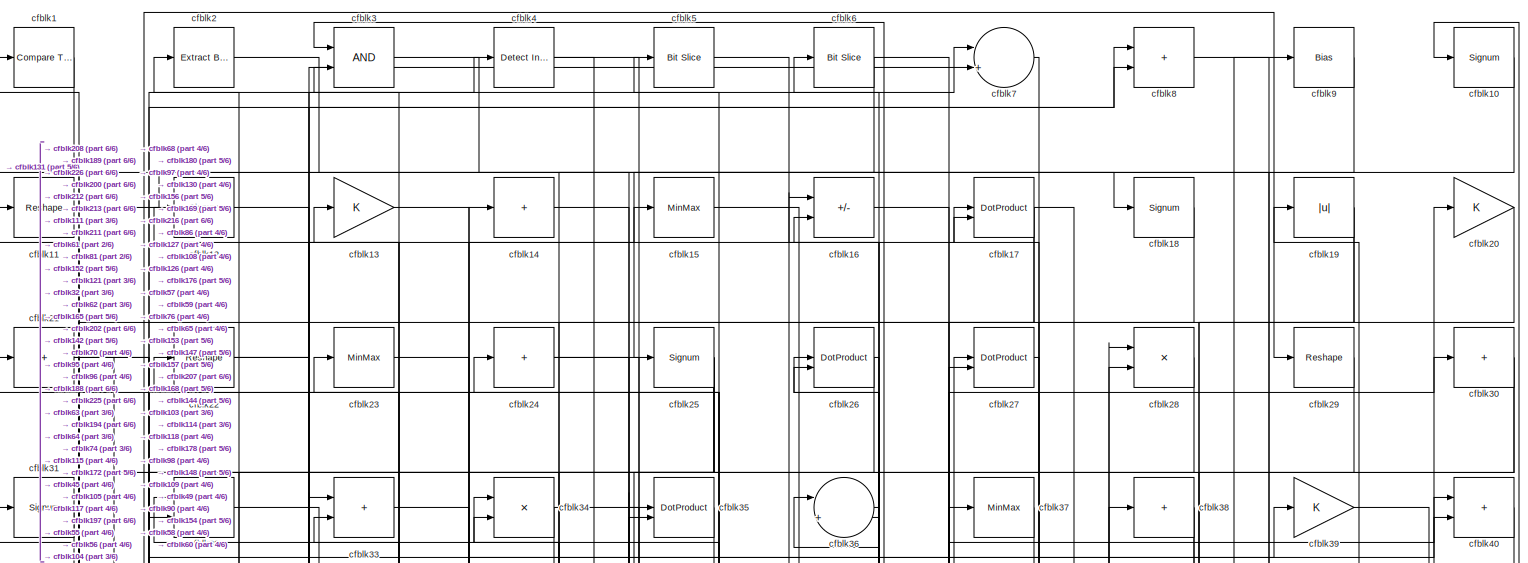
[diagram: root canvas - part 1/6, full width, top band]
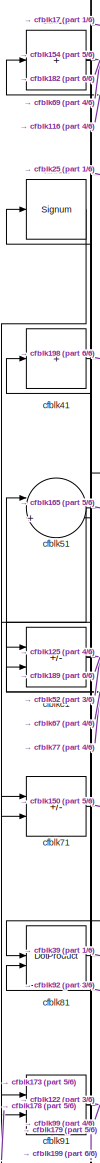
[diagram: root canvas - part 2/6, top left region]
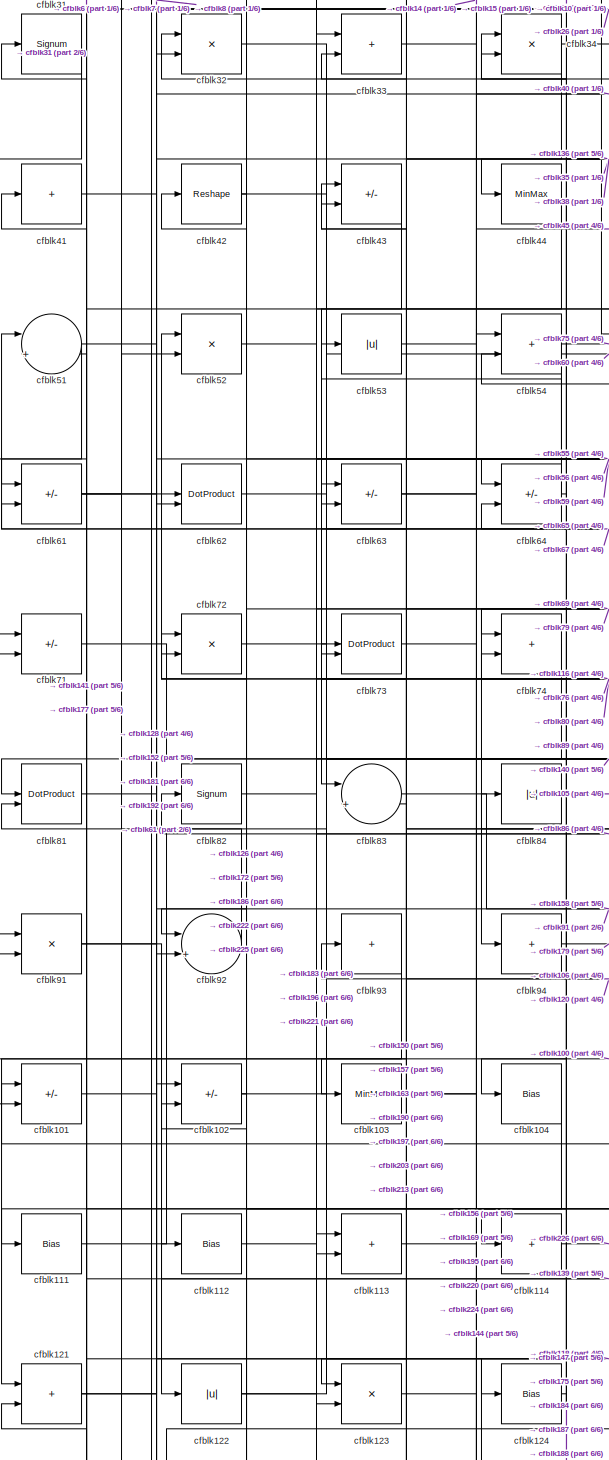
[diagram: root canvas - part 3/6, middle left region]
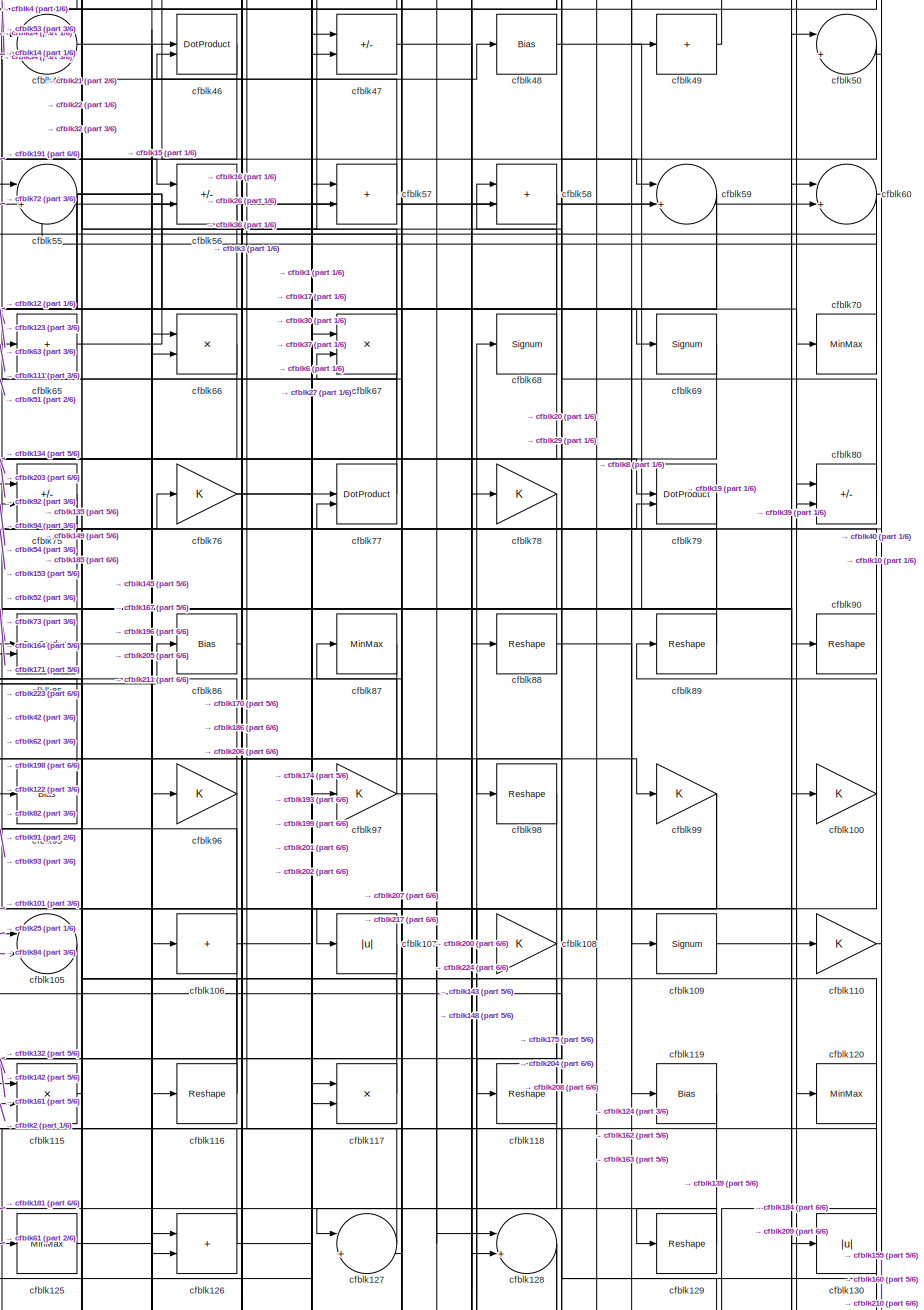
[diagram: root canvas - part 4/6, middle right region]
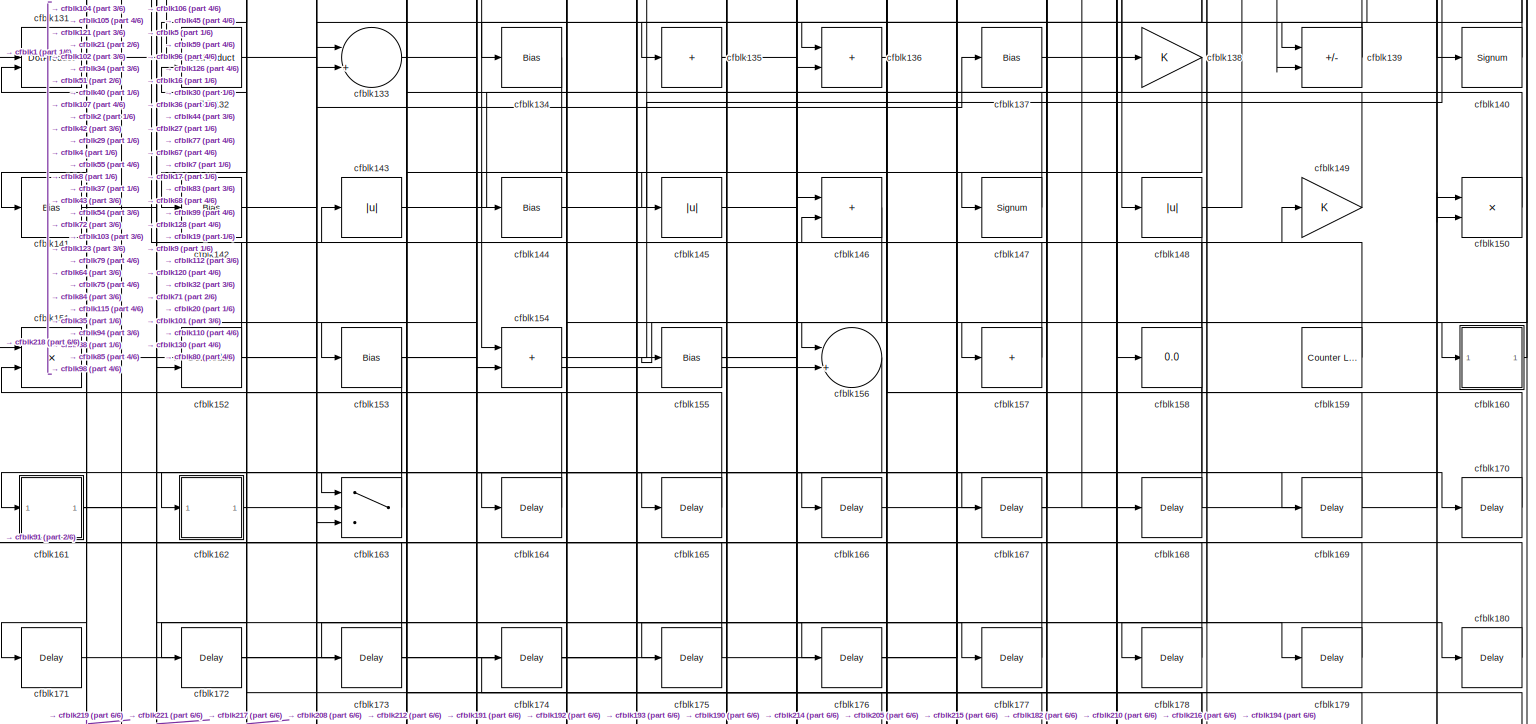
[diagram: root canvas - part 5/6, full width, bottom band]
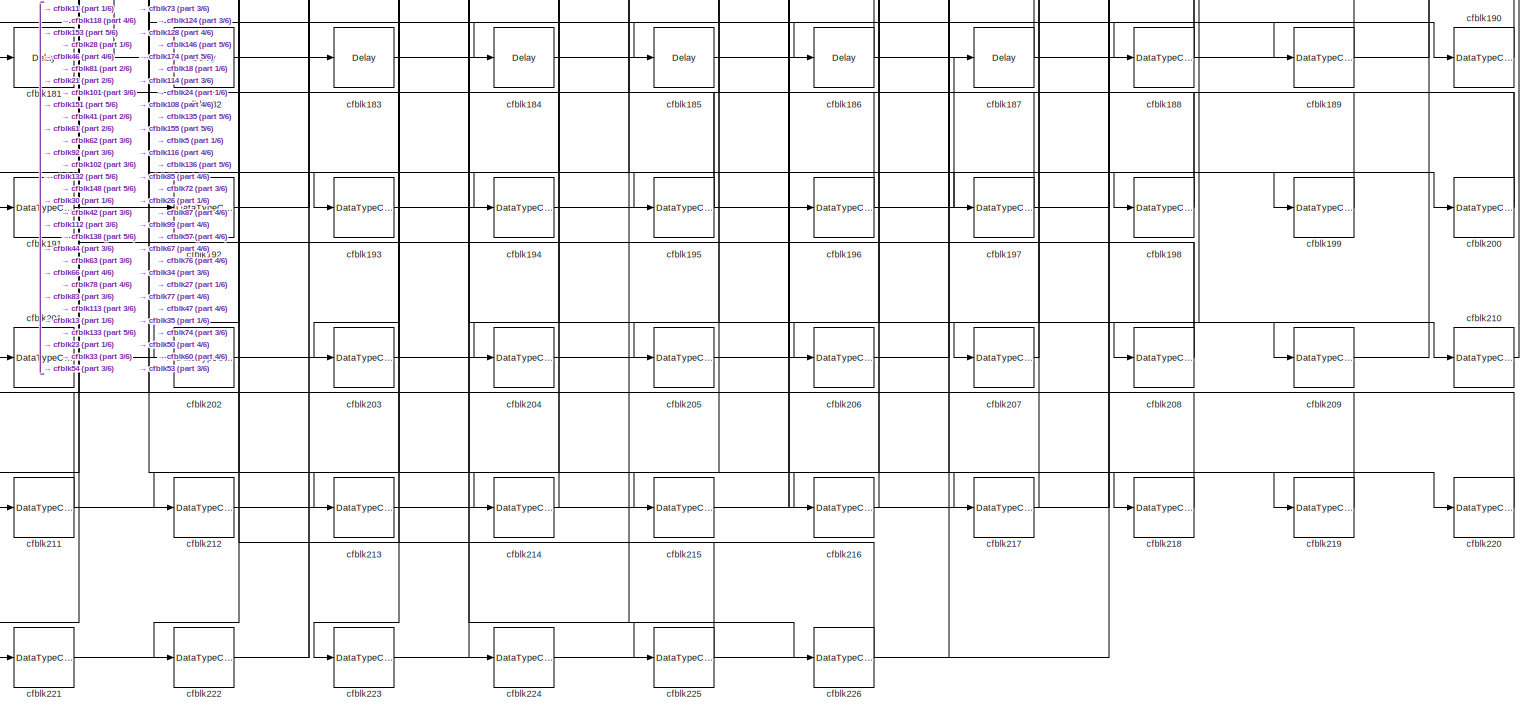
[diagram: root canvas - part 6/6, full width, bottom band]
MODEL slx_b7831458a49b
KIND model
CONFIG AbsTol = auto
CONFIG EnableMultiTasking = off
CONFIG FixedStep = auto
CONFIG MaxStep = auto
CONFIG MinStep = auto
CONFIG RelTol = 1e-3
CONFIG SampleTimeConstraint = Unconstrained
CONFIG SolverName = VariableStepAuto
CONFIG StartTime = 0.0
CONFIG StopTime = 10.0
BLOCK [Reference] cfblk1  REF=hdlsllib/Logic and Bit
Operations/Compare
To Constant
  SourceBlock = hdlsllib/Logic and Bit\nOperations/Compare\nTo Constant
  SourceType = Compare To Constant
BLOCK [Signum] cfblk10
BLOCK [Gain] cfblk100
BLOCK [Sum] cfblk101
  IconShape = rectangular
  Inputs = +-
BLOCK [Sum] cfblk102
  IconShape = rectangular
  Inputs = +-
BLOCK [MinMax] cfblk103
BLOCK [Bias] cfblk104
  Bias = 0.0
  SaturateOnIntegerOverflow = off
BLOCK [Sum] cfblk105
  Inputs = |++
BLOCK [Sum] cfblk106
  IconShape = rectangular
  Inputs = +
BLOCK [Abs] cfblk107
  SaturateOnIntegerOverflow = off
BLOCK [Gain] cfblk108
BLOCK [Signum] cfblk109
BLOCK [Reshape] cfblk11
BLOCK [Gain] cfblk110
BLOCK [Bias] cfblk111
  Bias = 0.0
  SaturateOnIntegerOverflow = off
BLOCK [Bias] cfblk112
  Bias = 0.0
  SaturateOnIntegerOverflow = off
BLOCK [Sum] cfblk113
  IconShape = rectangular
BLOCK [Sum] cfblk114
  IconShape = rectangular
  Inputs = +
BLOCK [Product] cfblk115
  Inputs = */
  RndMeth = Zero
  SaturateOnIntegerOverflow = on
BLOCK [Reshape] cfblk116
BLOCK [Product] cfblk117
  Inputs = */
  RndMeth = Zero
  SaturateOnIntegerOverflow = on
BLOCK [Reshape] cfblk118
BLOCK [Bias] cfblk119
  Bias = 0.0
  SaturateOnIntegerOverflow = off
BLOCK [Signum] cfblk12
BLOCK [MinMax] cfblk120
BLOCK [Sum] cfblk121
  IconShape = rectangular
BLOCK [Abs] cfblk122
  SaturateOnIntegerOverflow = off
BLOCK [Product] cfblk123
  Inputs = */
  RndMeth = Zero
  SaturateOnIntegerOverflow = on
BLOCK [Bias] cfblk124
  Bias = 0.0
  SaturateOnIntegerOverflow = off
BLOCK [MinMax] cfblk125
BLOCK [Sum] cfblk126
  IconShape = rectangular
BLOCK [Sum] cfblk127
  Inputs = |++
BLOCK [Sum] cfblk128
  Inputs = |++
BLOCK [Reshape] cfblk129
BLOCK [Gain] cfblk13
BLOCK [Abs] cfblk130
  SaturateOnIntegerOverflow = off
BLOCK [DotProduct] cfblk131
  OutDataTypeStr = Inherit: Inherit via internal rule
BLOCK [DotProduct] cfblk132
  OutDataTypeStr = Inherit: Inherit via internal rule
BLOCK [Sum] cfblk133
  Inputs = |++
BLOCK [Bias] cfblk134
  Bias = 0.0
  SaturateOnIntegerOverflow = off
BLOCK [Sum] cfblk135
  IconShape = rectangular
  Inputs = +
BLOCK [Sum] cfblk136
  IconShape = rectangular
BLOCK [Bias] cfblk137
  Bias = 0.0
  SaturateOnIntegerOverflow = off
BLOCK [Gain] cfblk138
BLOCK [Sum] cfblk139
  IconShape = rectangular
  Inputs = +-
BLOCK [Sum] cfblk14
  IconShape = rectangular
  Inputs = +
BLOCK [Signum] cfblk140
BLOCK [Bias] cfblk141
  Bias = 0.0
  SaturateOnIntegerOverflow = off
BLOCK [Bias] cfblk142
  Bias = 0.0
  SaturateOnIntegerOverflow = off
BLOCK [Abs] cfblk143
  SaturateOnIntegerOverflow = off
BLOCK [Bias] cfblk144
  Bias = 0.0
  SaturateOnIntegerOverflow = off
BLOCK [Abs] cfblk145
  SaturateOnIntegerOverflow = off
BLOCK [Sum] cfblk146
  IconShape = rectangular
BLOCK [Signum] cfblk147
BLOCK [Abs] cfblk148
  SaturateOnIntegerOverflow = off
BLOCK [Gain] cfblk149
BLOCK [MinMax] cfblk15
BLOCK [Product] cfblk150
  Inputs = */
  RndMeth = Zero
  SaturateOnIntegerOverflow = on
BLOCK [Product] cfblk151
  Inputs = */
  RndMeth = Zero
  SaturateOnIntegerOverflow = on
BLOCK [DotProduct] cfblk152
  OutDataTypeStr = Inherit: Inherit via internal rule
BLOCK [Bias] cfblk153
  Bias = 0.0
  SaturateOnIntegerOverflow = off
BLOCK [Sum] cfblk154
  IconShape = rectangular
BLOCK [Bias] cfblk155
  Bias = 0.0
  SaturateOnIntegerOverflow = off
BLOCK [Sum] cfblk156
  Inputs = |++
BLOCK [Sum] cfblk157
  IconShape = rectangular
  Inputs = +
BLOCK [Display] cfblk158
  Decimation = 1
BLOCK [Reference] cfblk159  REF=hdlsllib/Sources/Counter
Limited
  SourceBlock = hdlsllib/Sources/Counter\nLimited
  SourceType = Counter Limited
BLOCK [Sum] cfblk16
  IconShape = rectangular
  Inputs = +-
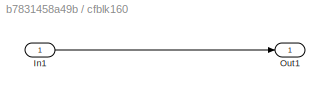
BLOCK [SubSystem] cfblk160
  LibrarySourceBlock = hdlsllib/Ports &\nSubsystems/Subsystem
BLOCK [Inport] cfblk160/In1
BLOCK [Outport] cfblk160/Out1
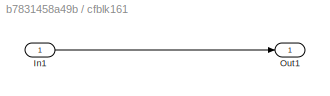
BLOCK [SubSystem] cfblk161
  LibrarySourceBlock = hdlsllib/Ports &\nSubsystems/Subsystem
BLOCK [Inport] cfblk161/In1
BLOCK [Outport] cfblk161/Out1
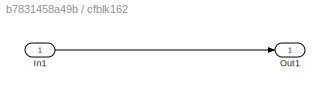
BLOCK [SubSystem] cfblk162
  LibrarySourceBlock = hdlsllib/Ports &\nSubsystems/Subsystem
BLOCK [Inport] cfblk162/In1
BLOCK [Outport] cfblk162/Out1
BLOCK [Switch] cfblk163
  InputSameDT = off
  SaturateOnIntegerOverflow = off
BLOCK [Delay] cfblk164
  InputPortMap = u0
  SampleTime = 1
BLOCK [Delay] cfblk165
  InputPortMap = u0
  SampleTime = 1
BLOCK [Delay] cfblk166
  InputPortMap = u0
  SampleTime = 1
BLOCK [Delay] cfblk167
  InputPortMap = u0
  SampleTime = 1
BLOCK [Delay] cfblk168
  InputPortMap = u0
  SampleTime = 1
BLOCK [Delay] cfblk169
  InputPortMap = u0
  SampleTime = 1
BLOCK [DotProduct] cfblk17
  OutDataTypeStr = Inherit: Inherit via internal rule
BLOCK [Delay] cfblk170
  InputPortMap = u0
  SampleTime = 1
BLOCK [Delay] cfblk171
  InputPortMap = u0
  SampleTime = 1
BLOCK [Delay] cfblk172
  InputPortMap = u0
  SampleTime = 1
BLOCK [Delay] cfblk173
  InputPortMap = u0
  SampleTime = 1
BLOCK [Delay] cfblk174
  InputPortMap = u0
  SampleTime = 1
BLOCK [Delay] cfblk175
  InputPortMap = u0
  SampleTime = 1
BLOCK [Delay] cfblk176
  InputPortMap = u0
  SampleTime = 1
BLOCK [Delay] cfblk177
  InputPortMap = u0
  SampleTime = 1
BLOCK [Delay] cfblk178
  InputPortMap = u0
  SampleTime = 1
BLOCK [Delay] cfblk179
  InputPortMap = u0
  SampleTime = 1
BLOCK [Signum] cfblk18
BLOCK [Delay] cfblk180
  InputPortMap = u0
  SampleTime = 1
BLOCK [Delay] cfblk181
  InputPortMap = u0
  SampleTime = 1
BLOCK [Delay] cfblk182
  InputPortMap = u0
  SampleTime = 1
BLOCK [Delay] cfblk183
  InputPortMap = u0
  SampleTime = 1
BLOCK [Delay] cfblk184
  InputPortMap = u0
  SampleTime = 1
BLOCK [Delay] cfblk185
  InputPortMap = u0
  SampleTime = 1
BLOCK [Delay] cfblk186
  InputPortMap = u0
  SampleTime = 1
BLOCK [Delay] cfblk187
  InputPortMap = u0
  SampleTime = 1
BLOCK [DataTypeConversion] cfblk188
  RndMeth = Floor
  SaturateOnIntegerOverflow = off
BLOCK [DataTypeConversion] cfblk189
  OutDataTypeStr = uint8
  RndMeth = Floor
  SaturateOnIntegerOverflow = off
BLOCK [Abs] cfblk19
  SaturateOnIntegerOverflow = off
BLOCK [DataTypeConversion] cfblk190
  OutDataTypeStr = uint8
  RndMeth = Floor
  SaturateOnIntegerOverflow = off
BLOCK [DataTypeConversion] cfblk191
  OutDataTypeStr = uint8
  RndMeth = Floor
  SaturateOnIntegerOverflow = off
BLOCK [DataTypeConversion] cfblk192
  OutDataTypeStr = uint8
  RndMeth = Floor
  SaturateOnIntegerOverflow = off
BLOCK [DataTypeConversion] cfblk193
  RndMeth = Floor
  SaturateOnIntegerOverflow = off
BLOCK [DataTypeConversion] cfblk194
  OutDataTypeStr = uint8
  RndMeth = Floor
  SaturateOnIntegerOverflow = off
BLOCK [DataTypeConversion] cfblk195
  RndMeth = Floor
  SaturateOnIntegerOverflow = off
BLOCK [DataTypeConversion] cfblk196
  OutDataTypeStr = uint8
  RndMeth = Floor
  SaturateOnIntegerOverflow = off
BLOCK [DataTypeConversion] cfblk197
  OutDataTypeStr = uint8
  RndMeth = Floor
  SaturateOnIntegerOverflow = off
BLOCK [DataTypeConversion] cfblk198
  RndMeth = Floor
  SaturateOnIntegerOverflow = off
BLOCK [DataTypeConversion] cfblk199
  OutDataTypeStr = uint8
  RndMeth = Floor
  SaturateOnIntegerOverflow = off
BLOCK [Reference] cfblk2  REF=simulink/Logic and Bit
Operations/Extract Bits
  LibrarySourceBlock = hdlsllib/Logic and Bit\nOperations/Extract Bits
  SourceBlock = simulink/Logic and Bit\nOperations/Extract Bits
  SourceType = Extract Bits
BLOCK [Gain] cfblk20
BLOCK [DataTypeConversion] cfblk200
  RndMeth = Floor
  SaturateOnIntegerOverflow = off
BLOCK [DataTypeConversion] cfblk201
  OutDataTypeStr = uint8
  RndMeth = Floor
  SaturateOnIntegerOverflow = off
BLOCK [DataTypeConversion] cfblk202
  OutDataTypeStr = uint8
  RndMeth = Floor
  SaturateOnIntegerOverflow = off
BLOCK [DataTypeConversion] cfblk203
  OutDataTypeStr = uint8
  RndMeth = Floor
  SaturateOnIntegerOverflow = off
BLOCK [DataTypeConversion] cfblk204
  OutDataTypeStr = uint8
  RndMeth = Floor
  SaturateOnIntegerOverflow = off
BLOCK [DataTypeConversion] cfblk205
  OutDataTypeStr = uint8
  RndMeth = Floor
  SaturateOnIntegerOverflow = off
BLOCK [DataTypeConversion] cfblk206
  OutDataTypeStr = uint8
  RndMeth = Floor
  SaturateOnIntegerOverflow = off
BLOCK [DataTypeConversion] cfblk207
  OutDataTypeStr = uint8
  RndMeth = Floor
  SaturateOnIntegerOverflow = off
BLOCK [DataTypeConversion] cfblk208
  RndMeth = Floor
  SaturateOnIntegerOverflow = off
BLOCK [DataTypeConversion] cfblk209
  OutDataTypeStr = uint8
  RndMeth = Floor
  SaturateOnIntegerOverflow = off
BLOCK [Sum] cfblk21
  IconShape = rectangular
  Inputs = +
BLOCK [DataTypeConversion] cfblk210
  OutDataTypeStr = uint8
  RndMeth = Floor
  SaturateOnIntegerOverflow = off
BLOCK [DataTypeConversion] cfblk211
  RndMeth = Floor
  SaturateOnIntegerOverflow = off
BLOCK [DataTypeConversion] cfblk212
  OutDataTypeStr = uint8
  RndMeth = Floor
  SaturateOnIntegerOverflow = off
BLOCK [DataTypeConversion] cfblk213
  OutDataTypeStr = uint8
  RndMeth = Floor
  SaturateOnIntegerOverflow = off
BLOCK [DataTypeConversion] cfblk214
  OutDataTypeStr = uint8
  RndMeth = Floor
  SaturateOnIntegerOverflow = off
BLOCK [DataTypeConversion] cfblk215
  OutDataTypeStr = uint8
  RndMeth = Floor
  SaturateOnIntegerOverflow = off
BLOCK [DataTypeConversion] cfblk216
  OutDataTypeStr = uint8
  RndMeth = Floor
  SaturateOnIntegerOverflow = off
BLOCK [DataTypeConversion] cfblk217
  OutDataTypeStr = uint8
  RndMeth = Floor
  SaturateOnIntegerOverflow = off
BLOCK [DataTypeConversion] cfblk218
  OutDataTypeStr = uint8
  RndMeth = Floor
  SaturateOnIntegerOverflow = off
BLOCK [DataTypeConversion] cfblk219
  OutDataTypeStr = uint8
  RndMeth = Floor
  SaturateOnIntegerOverflow = off
BLOCK [Reshape] cfblk22
BLOCK [DataTypeConversion] cfblk220
  OutDataTypeStr = uint8
  RndMeth = Floor
  SaturateOnIntegerOverflow = off
BLOCK [DataTypeConversion] cfblk221
  OutDataTypeStr = uint8
  RndMeth = Floor
  SaturateOnIntegerOverflow = off
BLOCK [DataTypeConversion] cfblk222
  OutDataTypeStr = uint8
  RndMeth = Floor
  SaturateOnIntegerOverflow = off
BLOCK [DataTypeConversion] cfblk223
  OutDataTypeStr = uint8
  RndMeth = Floor
  SaturateOnIntegerOverflow = off
BLOCK [DataTypeConversion] cfblk224
  OutDataTypeStr = uint8
  RndMeth = Floor
  SaturateOnIntegerOverflow = off
BLOCK [DataTypeConversion] cfblk225
  OutDataTypeStr = uint8
  RndMeth = Floor
  SaturateOnIntegerOverflow = off
BLOCK [DataTypeConversion] cfblk226
  OutDataTypeStr = uint8
  RndMeth = Floor
  SaturateOnIntegerOverflow = off
BLOCK [MinMax] cfblk23
BLOCK [Sum] cfblk24
  IconShape = rectangular
  Inputs = +
BLOCK [Signum] cfblk25
BLOCK [DotProduct] cfblk26
  OutDataTypeStr = Inherit: Inherit via internal rule
BLOCK [DotProduct] cfblk27
  OutDataTypeStr = Inherit: Inherit via internal rule
BLOCK [Product] cfblk28
  Inputs = */
  RndMeth = Zero
  SaturateOnIntegerOverflow = on
BLOCK [Reshape] cfblk29
BLOCK [Logic] cfblk3
  AllPortsSameDT = off
  OutDataTypeStr = boolean
BLOCK [Sum] cfblk30
  IconShape = rectangular
  Inputs = +
BLOCK [Signum] cfblk31
BLOCK [Product] cfblk32
  Inputs = */
  RndMeth = Zero
  SaturateOnIntegerOverflow = on
BLOCK [Sum] cfblk33
  IconShape = rectangular
BLOCK [Product] cfblk34
  Inputs = */
  RndMeth = Zero
  SaturateOnIntegerOverflow = on
BLOCK [DotProduct] cfblk35
  OutDataTypeStr = Inherit: Inherit via internal rule
BLOCK [Sum] cfblk36
  Inputs = |++
BLOCK [MinMax] cfblk37
BLOCK [Sum] cfblk38
  IconShape = rectangular
  Inputs = +
BLOCK [Gain] cfblk39
BLOCK [Reference] cfblk4  REF=simulink/Logic and Bit
Operations/Detect
Increase
  LibrarySourceBlock = hdlsllib/Logic and Bit\nOperations/Detect\nIncrease
  SourceBlock = simulink/Logic and Bit\nOperations/Detect\nIncrease
  SourceType = Detect Increase
BLOCK [Sum] cfblk40
  IconShape = rectangular
BLOCK [Sum] cfblk41
  IconShape = rectangular
  Inputs = +
BLOCK [Reshape] cfblk42
BLOCK [Sum] cfblk43
  IconShape = rectangular
  Inputs = +-
BLOCK [MinMax] cfblk44
BLOCK [Sum] cfblk45
  Inputs = |++
BLOCK [DotProduct] cfblk46
  OutDataTypeStr = Inherit: Inherit via internal rule
BLOCK [Sum] cfblk47
  IconShape = rectangular
  Inputs = +-
BLOCK [Bias] cfblk48
  Bias = 0.0
  SaturateOnIntegerOverflow = off
BLOCK [Sum] cfblk49
  IconShape = rectangular
  Inputs = +
BLOCK [Reference] cfblk5  REF=hdlsllib/Logic and Bit
Operations/Bit Slice
  SourceBlock = hdlsllib/Logic and Bit\nOperations/Bit Slice
  SourceType = Bit Slice
BLOCK [Sum] cfblk50
  Inputs = |++
BLOCK [Sum] cfblk51
  Inputs = |++
BLOCK [Product] cfblk52
  Inputs = */
  RndMeth = Zero
  SaturateOnIntegerOverflow = on
BLOCK [Abs] cfblk53
  SaturateOnIntegerOverflow = off
BLOCK [Sum] cfblk54
  IconShape = rectangular
BLOCK [Sum] cfblk55
  Inputs = |++
BLOCK [Sum] cfblk56
  IconShape = rectangular
  Inputs = +-
BLOCK [Sum] cfblk57
  IconShape = rectangular
BLOCK [Sum] cfblk58
  IconShape = rectangular
BLOCK [Sum] cfblk59
  Inputs = |++
BLOCK [Reference] cfblk6  REF=hdlsllib/Logic and Bit
Operations/Bit Slice
  SourceBlock = hdlsllib/Logic and Bit\nOperations/Bit Slice
  SourceType = Bit Slice
BLOCK [Sum] cfblk60
  Inputs = |++
BLOCK [Sum] cfblk61
  IconShape = rectangular
  Inputs = +-
BLOCK [DotProduct] cfblk62
  OutDataTypeStr = Inherit: Inherit via internal rule
BLOCK [Sum] cfblk63
  IconShape = rectangular
  Inputs = +-
BLOCK [Sum] cfblk64
  IconShape = rectangular
  Inputs = +-
BLOCK [Sum] cfblk65
  IconShape = rectangular
  Inputs = +
BLOCK [Product] cfblk66
  Inputs = */
  RndMeth = Zero
  SaturateOnIntegerOverflow = on
BLOCK [Product] cfblk67
  Inputs = */
  RndMeth = Zero
  SaturateOnIntegerOverflow = on
BLOCK [Signum] cfblk68
BLOCK [Signum] cfblk69
BLOCK [Sum] cfblk7
  Inputs = |++
BLOCK [MinMax] cfblk70
BLOCK [Sum] cfblk71
  IconShape = rectangular
  Inputs = +-
BLOCK [Product] cfblk72
  Inputs = */
  RndMeth = Zero
  SaturateOnIntegerOverflow = on
BLOCK [DotProduct] cfblk73
  OutDataTypeStr = Inherit: Inherit via internal rule
BLOCK [Sum] cfblk74
  IconShape = rectangular
BLOCK [Sum] cfblk75
  IconShape = rectangular
  Inputs = +-
BLOCK [Gain] cfblk76
BLOCK [DotProduct] cfblk77
  OutDataTypeStr = Inherit: Inherit via internal rule
BLOCK [Gain] cfblk78
BLOCK [DotProduct] cfblk79
  OutDataTypeStr = Inherit: Inherit via internal rule
BLOCK [Sum] cfblk8
  IconShape = rectangular
BLOCK [Sum] cfblk80
  IconShape = rectangular
  Inputs = +-
BLOCK [DotProduct] cfblk81
  OutDataTypeStr = Inherit: Inherit via internal rule
BLOCK [Signum] cfblk82
BLOCK [Sum] cfblk83
  Inputs = |++
BLOCK [Abs] cfblk84
  SaturateOnIntegerOverflow = off
BLOCK [DotProduct] cfblk85
  OutDataTypeStr = Inherit: Inherit via internal rule
BLOCK [Bias] cfblk86
  Bias = 0.0
  SaturateOnIntegerOverflow = off
BLOCK [MinMax] cfblk87
BLOCK [Reshape] cfblk88
BLOCK [Reshape] cfblk89
BLOCK [Bias] cfblk9
  Bias = 0.0
  SaturateOnIntegerOverflow = off
BLOCK [Reshape] cfblk90
BLOCK [Product] cfblk91
  Inputs = */
  RndMeth = Zero
  SaturateOnIntegerOverflow = on
BLOCK [Sum] cfblk92
  Inputs = |++
BLOCK [Sum] cfblk93
  IconShape = rectangular
  Inputs = +
BLOCK [Sum] cfblk94
  IconShape = rectangular
  Inputs = +
BLOCK [Bias] cfblk95
  Bias = 0.0
  SaturateOnIntegerOverflow = off
BLOCK [Gain] cfblk96
BLOCK [Gain] cfblk97
BLOCK [Reshape] cfblk98
BLOCK [Gain] cfblk99
NET cfblk100:1 -> cfblk101:2, cfblk89:1
LINE cfblk101:1 -> cfblk192:1
NET cfblk102:1 -> cfblk144:1, cfblk222:1
NET cfblk103:1 -> cfblk156:2, cfblk15:1
LINE cfblk104:1 -> cfblk141:1
LINE cfblk105:1 -> cfblk161:1
NET cfblk106:1 -> cfblk110:1, cfblk132:1, cfblk73:2
LINE cfblk107:1 -> cfblk142:1
NET cfblk108:1 -> cfblk107:1, cfblk185:1
LINE cfblk109:1 -> cfblk120:1
LINE cfblk10:1 -> cfblk64:1
LINE cfblk110:1 -> cfblk155:1
LINE cfblk111:1 -> cfblk65:1
LINE cfblk112:1 -> cfblk183:1
LINE cfblk113:1 -> cfblk220:1
LINE cfblk114:1 -> cfblk226:1
LINE cfblk115:1 -> cfblk95:1
NET cfblk116:1 -> cfblk21:1, cfblk73:1
LINE cfblk117:1 -> cfblk75:1
NET cfblk118:1 -> cfblk181:1, cfblk82:1
LINE cfblk119:1 -> cfblk129:1
LINE cfblk11:1 -> cfblk18:1
NET cfblk120:1 -> cfblk139:1, cfblk93:1
NET cfblk121:1 -> cfblk7:1, cfblk8:2
NET cfblk122:1 -> cfblk80:1, cfblk86:1
LINE cfblk123:1 -> cfblk169:1
LINE cfblk124:1 -> cfblk184:1
LINE cfblk125:1 -> cfblk46:1
NET cfblk126:1 -> cfblk1:1, cfblk37:1
LINE cfblk127:1 -> cfblk3:1
NET cfblk128:1 -> cfblk175:1, cfblk204:1
LINE cfblk129:1 -> cfblk127:1
LINE cfblk12:1 -> cfblk70:1
NET cfblk130:1 -> cfblk163:2, cfblk26:2
LINE cfblk131:1 -> cfblk40:1
LINE cfblk132:1 -> cfblk166:1
LINE cfblk133:1 -> cfblk190:1
LINE cfblk134:1 -> cfblk154:1
NET cfblk135:1 -> cfblk210:1, cfblk215:1
LINE cfblk136:1 -> cfblk44:1
LINE cfblk137:1 -> cfblk160:1
LINE cfblk138:1 -> cfblk193:1
NET cfblk139:1 -> cfblk112:1, cfblk136:1
LINE cfblk13:1 -> cfblk188:1
LINE cfblk140:1 -> cfblk101:1
LINE cfblk141:1 -> cfblk102:1
NET cfblk142:1 -> cfblk17:2, cfblk4:1
LINE cfblk143:1 -> cfblk68:1
LINE cfblk144:1 -> cfblk38:1
LINE cfblk145:1 -> cfblk106:1
LINE cfblk146:1 -> cfblk214:1
LINE cfblk147:1 -> cfblk84:1
NET cfblk148:1 -> cfblk212:1, cfblk9:1
LINE cfblk149:1 -> cfblk85:2
LINE cfblk14:1 -> cfblk45:2
LINE cfblk150:1 -> cfblk72:1
LINE cfblk151:1 -> cfblk217:1
NET cfblk152:1 -> cfblk137:1, cfblk29:1, cfblk8:1
NET cfblk153:1 -> cfblk170:1, cfblk221:1, cfblk79:2
LINE cfblk154:1 -> cfblk20:1
NET cfblk155:1 -> cfblk205:1, cfblk59:2, cfblk96:1
LINE cfblk156:1 -> cfblk173:1
LINE cfblk157:1 -> cfblk43:1
LINE cfblk159:1 -> cfblk143:1
LINE cfblk15:1 -> cfblk97:1
LINE cfblk160/In1:1 -> cfblk160/Out1:1
LINE cfblk160:1 -> cfblk80:2
LINE cfblk161/In1:1 -> cfblk161/Out1:1
NET cfblk161:1 -> cfblk149:1, cfblk177:1
LINE cfblk162/In1:1 -> cfblk162/Out1:1
LINE cfblk162:1 -> cfblk176:1
LINE cfblk163:1 -> cfblk102:2
LINE cfblk164:1 -> cfblk131:2
LINE cfblk165:1 -> cfblk2:1
LINE cfblk166:1 -> cfblk150:1
LINE cfblk167:1 -> cfblk67:2
LINE cfblk168:1 -> cfblk36:2
LINE cfblk169:1 -> cfblk16:1
LINE cfblk16:1 -> cfblk108:1
LINE cfblk170:1 -> cfblk126:1
LINE cfblk171:1 -> cfblk115:1
LINE cfblk172:1 -> cfblk35:2
LINE cfblk173:1 -> cfblk91:1
LINE cfblk174:1 -> cfblk77:1
LINE cfblk175:1 -> cfblk64:2
LINE cfblk176:1 -> cfblk27:2
LINE cfblk177:1 -> cfblk121:2
LINE cfblk178:1 -> cfblk71:1
LINE cfblk179:1 -> cfblk51:2
NET cfblk17:1 -> cfblk168:1, cfblk57:2, cfblk61:1
LINE cfblk180:1 -> cfblk152:1
LINE cfblk181:1 -> cfblk92:2
LINE cfblk182:1 -> cfblk136:2
LINE cfblk183:1 -> cfblk209:1
LINE cfblk184:1 -> cfblk60:1
LINE cfblk185:1 -> cfblk219:1
LINE cfblk186:1 -> cfblk72:2
LINE cfblk187:1 -> cfblk34:2
NET cfblk188:1 -> cfblk35:1, cfblk74:2
LINE cfblk189:1 -> cfblk13:1
LINE cfblk18:1 -> cfblk194:1
LINE cfblk190:1 -> cfblk53:1
LINE cfblk191:1 -> cfblk133:1
LINE cfblk192:1 -> cfblk133:2
NET cfblk193:1 -> cfblk187:1, cfblk67:1
LINE cfblk194:1 -> cfblk138:1
NET cfblk195:1 -> cfblk54:1, cfblk83:2
LINE cfblk196:1 -> cfblk33:1
LINE cfblk197:1 -> cfblk33:2
NET cfblk198:1 -> cfblk81:2, cfblk85:1
LINE cfblk199:1 -> cfblk41:1
NET cfblk19:1 -> cfblk147:1, cfblk178:1
LINE cfblk1:1 -> cfblk131:1
NET cfblk200:1 -> cfblk46:2, cfblk5:1
LINE cfblk201:1 -> cfblk47:1
LINE cfblk202:1 -> cfblk47:2
LINE cfblk203:1 -> cfblk63:2
LINE cfblk204:1 -> cfblk66:1
LINE cfblk205:1 -> cfblk66:2
LINE cfblk206:1 -> cfblk218:1
LINE cfblk207:1 -> cfblk87:1
NET cfblk208:1 -> cfblk11:1, cfblk132:2
LINE cfblk209:1 -> cfblk50:1
LINE cfblk20:1 -> cfblk118:1
LINE cfblk210:1 -> cfblk50:2
NET cfblk211:1 -> cfblk116:1, cfblk201:1
LINE cfblk212:1 -> cfblk28:1
LINE cfblk213:1 -> cfblk28:2
LINE cfblk214:1 -> cfblk174:1
LINE cfblk215:1 -> cfblk146:1
LINE cfblk216:1 -> cfblk146:2
LINE cfblk217:1 -> cfblk77:2
LINE cfblk218:1 -> cfblk151:1
LINE cfblk219:1 -> cfblk151:2
NET cfblk21:1 -> cfblk154:2, cfblk182:1, cfblk69:1
LINE cfblk220:1 -> cfblk62:1
LINE cfblk221:1 -> cfblk113:1
LINE cfblk222:1 -> cfblk113:2
LINE cfblk223:1 -> cfblk57:1
LINE cfblk224:1 -> cfblk78:1
LINE cfblk225:1 -> cfblk42:1
LINE cfblk226:1 -> cfblk23:1
NET cfblk22:1 -> cfblk56:2, cfblk7:2
LINE cfblk23:1 -> cfblk225:1
NET cfblk24:1 -> cfblk117:1, cfblk197:1
NET cfblk25:1 -> cfblk105:1, cfblk32:2, cfblk62:2, cfblk81:1
NET cfblk26:1 -> cfblk216:1, cfblk74:1
LINE cfblk27:1 -> cfblk207:1
LINE cfblk28:1 -> cfblk211:1
LINE cfblk29:1 -> cfblk98:1
LINE cfblk2:1 -> cfblk115:2
NET cfblk30:1 -> cfblk156:1, cfblk202:1
LINE cfblk31:1 -> cfblk91:2
LINE cfblk32:1 -> cfblk140:1
LINE cfblk33:1 -> cfblk195:1
NET cfblk34:1 -> cfblk128:2, cfblk152:2
LINE cfblk35:1 -> cfblk104:1
LINE cfblk36:1 -> cfblk6:1
LINE cfblk37:1 -> cfblk153:1
NET cfblk38:1 -> cfblk103:1, cfblk114:1
LINE cfblk39:1 -> cfblk90:1
LINE cfblk3:1 -> cfblk109:1
LINE cfblk40:1 -> cfblk58:2
LINE cfblk41:1 -> cfblk198:1
NET cfblk42:1 -> cfblk126:2, cfblk172:1
LINE cfblk43:1 -> cfblk83:1
LINE cfblk44:1 -> cfblk213:1
LINE cfblk45:1 -> cfblk167:1
LINE cfblk46:1 -> cfblk191:1
LINE cfblk47:1 -> cfblk200:1
LINE cfblk48:1 -> cfblk130:1
LINE cfblk49:1 -> cfblk19:1
NET cfblk4:1 -> cfblk55:1, cfblk56:1
LINE cfblk50:1 -> cfblk208:1
NET cfblk51:1 -> cfblk165:1, cfblk71:2
LINE cfblk52:1 -> cfblk79:1
LINE cfblk53:1 -> cfblk45:1
NET cfblk54:1 -> cfblk163:1, cfblk75:2
NET cfblk55:1 -> cfblk124:1, cfblk139:2, cfblk162:1, cfblk163:3, cfblk48:1, cfblk88:1
LINE cfblk56:1 -> cfblk63:1
LINE cfblk57:1 -> cfblk24:1
LINE cfblk58:1 -> cfblk117:2
NET cfblk59:1 -> cfblk123:1, cfblk127:2
LINE cfblk5:1 -> cfblk180:1
NET cfblk60:1 -> cfblk10:1, cfblk55:2
NET cfblk61:1 -> cfblk125:1, cfblk189:1, cfblk52:2
LINE cfblk62:1 -> cfblk100:1
NET cfblk63:1 -> cfblk14:1, cfblk40:2
NET cfblk64:1 -> cfblk34:1, cfblk43:2
LINE cfblk65:1 -> cfblk27:1
LINE cfblk66:1 -> cfblk203:1
NET cfblk67:1 -> cfblk32:1, cfblk54:2, cfblk61:2, cfblk92:1
NET cfblk68:1 -> cfblk134:1, cfblk22:1
LINE cfblk69:1 -> cfblk94:1
NET cfblk6:1 -> cfblk111:1, cfblk59:1
LINE cfblk70:1 -> cfblk36:1
LINE cfblk71:1 -> cfblk150:2
LINE cfblk72:1 -> cfblk60:2
LINE cfblk73:1 -> cfblk224:1
LINE cfblk74:1 -> cfblk123:2
LINE cfblk75:1 -> cfblk164:1
NET cfblk76:1 -> cfblk199:1, cfblk30:1
LINE cfblk77:1 -> cfblk51:1
LINE cfblk78:1 -> cfblk223:1
LINE cfblk79:1 -> cfblk171:1
LINE cfblk7:1 -> cfblk157:1
LINE cfblk80:1 -> cfblk58:1
LINE cfblk81:1 -> cfblk39:1
LINE cfblk82:1 -> cfblk76:1
LINE cfblk83:1 -> cfblk158:1
LINE cfblk84:1 -> cfblk105:2
LINE cfblk85:1 -> cfblk196:1
LINE cfblk86:1 -> cfblk16:2
LINE cfblk87:1 -> cfblk206:1
LINE cfblk88:1 -> cfblk119:1
LINE cfblk89:1 -> cfblk52:1
LINE cfblk8:1 -> cfblk49:1
LINE cfblk90:1 -> cfblk17:1
NET cfblk91:1 -> cfblk122:1, cfblk99:1
LINE cfblk92:1 -> cfblk31:1
LINE cfblk93:1 -> cfblk121:1
LINE cfblk94:1 -> cfblk179:1
LINE cfblk95:1 -> cfblk12:1
NET cfblk96:1 -> cfblk135:1, cfblk3:2
NET cfblk97:1 -> cfblk128:1, cfblk26:1
LINE cfblk98:1 -> cfblk145:1
NET cfblk99:1 -> cfblk148:1, cfblk186:1
LINE cfblk9:1 -> cfblk25:1
note: NET lines group one-source signal fan-out (src -> all destinations, sorted); 1:1 wires keep LINE
